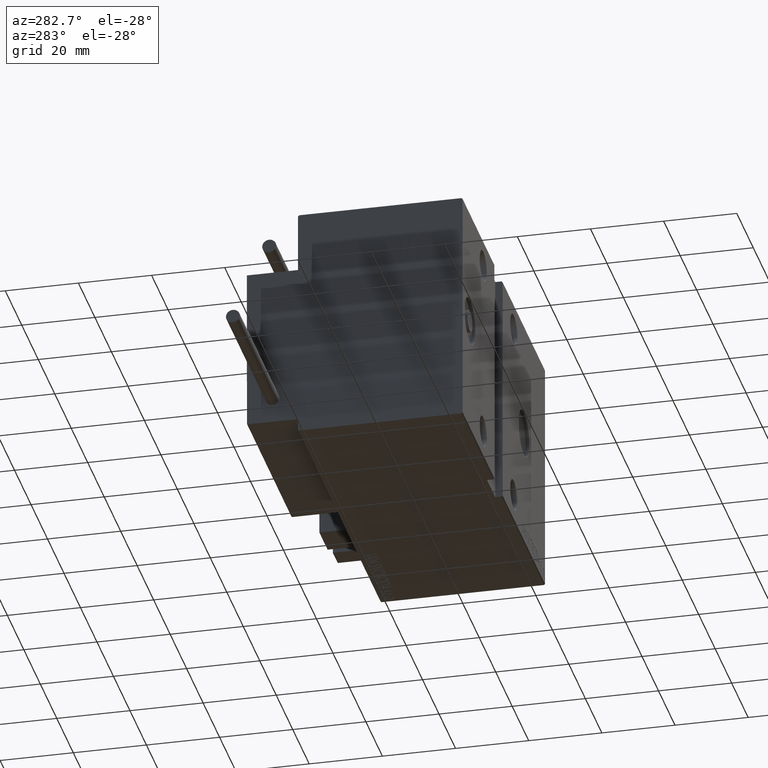
[diagram: clean part render]
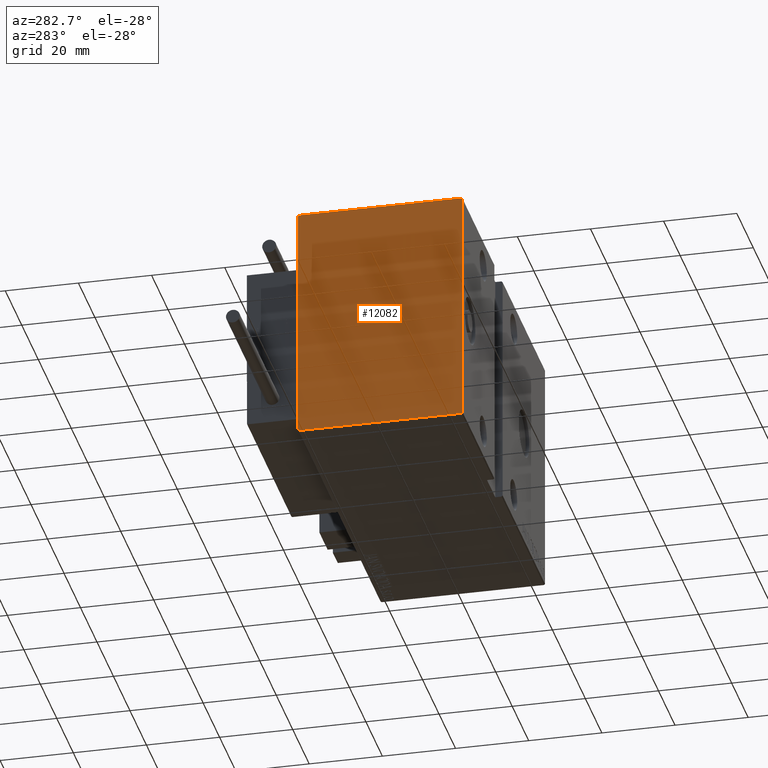
[diagram: same view with one face highlighted and labeled with its STEP entity id]
A machine part, auxiliary view. The second image highlights one B-rep face of the part: STEP entity #12082.
In plain terms, the highlighted planar face has unit normal (-1, 0, 0).
Its self-contained STEP definition (entity closure, byte-faithful):
#509 = CARTESIAN_POINT ( 'NONE',  ( 100.0000000000000000, 22.50000000000000355, -32.50000000000000000 ) ) ;
#532 = VERTEX_POINT ( 'NONE', #46810 ) ;
#825 = LINE ( 'NONE', #12162, #9351 ) ;
#1069 = DIRECTION ( 'NONE',  ( -0.000000000000000000, 0.7071067811865474617, 0.7071067811865474617 ) ) ;
#2451 = EDGE_LOOP ( 'NONE', ( #13887, #25581, #43269, #15101, #5081, #41051, #4586, #2512 ) ) ;
#2512 = ORIENTED_EDGE ( 'NONE', *, *, #4508, .T. ) ;
#2897 = EDGE_CURVE ( 'NONE', #8518, #4963, #7031, .T. ) ;
#3464 = EDGE_CURVE ( 'NONE', #16603, #8518, #23965, .T. ) ;
#4508 = EDGE_CURVE ( 'NONE', #532, #35576, #47154, .T. ) ;
#4586 = ORIENTED_EDGE ( 'NONE', *, *, #48230, .T. ) ;
#4963 = VERTEX_POINT ( 'NONE', #38083 ) ;
#5081 = ORIENTED_EDGE ( 'NONE', *, *, #2897, .T. ) ;
#5551 = CARTESIAN_POINT ( 'NONE',  ( 100.0000000000000000, 22.50000000000000355, -32.19999999999998153 ) ) ;
#7031 = LINE ( 'NONE', #22414, #40314 ) ;
#7582 = LINE ( 'NONE', #509, #19173 ) ;
#8518 = VERTEX_POINT ( 'NONE', #19443 ) ;
#8710 = VERTEX_POINT ( 'NONE', #30660 ) ;
#9068 = FACE_OUTER_BOUND ( 'NONE', #2451, .T. ) ;
#9351 = VECTOR ( 'NONE', #1069, 1000.000000000000114 ) ;
#9763 = DIRECTION ( 'NONE',  ( -0.000000000000000000, 0.7071067811865474617, -0.7071067811865474617 ) ) ;
#11992 = VERTEX_POINT ( 'NONE', #5551 ) ;
#12061 = VECTOR ( 'NONE', #35431, 1000.000000000000114 ) ;
#12082 = ADVANCED_FACE ( 'NONE', ( #9068 ), #24447, .T. ) ;
#12103 = VECTOR ( 'NONE', #43298, 1000.000000000000000 ) ;
#12162 = CARTESIAN_POINT ( 'NONE',  ( 100.0000000000000000, 27.34999999999999076, -27.34999999999999076 ) ) ;
#12508 = CARTESIAN_POINT ( 'NONE',  ( 100.0000000000000000, -22.49999999999999645, 32.50000000000000000 ) ) ;
#13887 = ORIENTED_EDGE ( 'NONE', *, *, #48901, .T. ) ;
#15101 = ORIENTED_EDGE ( 'NONE', *, *, #3464, .T. ) ;
#15256 = LINE ( 'NONE', #42248, #12061 ) ;
#16462 = EDGE_CURVE ( 'NONE', #11992, #16603, #7582, .T. ) ;
#16551 = LINE ( 'NONE', #12508, #12103 ) ;
#16603 = VERTEX_POINT ( 'NONE', #40365 ) ;
#18373 = DIRECTION ( 'NONE',  ( 1.000000000000000000, 0.000000000000000000, 0.000000000000000000 ) ) ;
#19173 = VECTOR ( 'NONE', #42636, 1000.000000000000000 ) ;
#19378 = VECTOR ( 'NONE', #9763, 1000.000000000000114 ) ;
#19443 = CARTESIAN_POINT ( 'NONE',  ( 100.0000000000000000, 22.19999999999997442, 32.50000000000000711 ) ) ;
#20191 = CARTESIAN_POINT ( 'NONE',  ( 100.0000000000000000, 27.35000000000025011, 27.34999999999961418 ) ) ;
#22414 = CARTESIAN_POINT ( 'NONE',  ( 100.0000000000000000, 22.49999999999999645, 32.50000000000000711 ) ) ;
#23432 = LINE ( 'NONE', #42865, #25034 ) ;
#23965 = LINE ( 'NONE', #20191, #37860 ) ;
#24447 = PLANE ( 'NONE',  #24786 ) ;
#24786 = AXIS2_PLACEMENT_3D ( 'NONE', #47654, #18373, #33752 ) ;
#25034 = VECTOR ( 'NONE', #26711, 1000.000000000000000 ) ;
#25581 = ORIENTED_EDGE ( 'NONE', *, *, #34598, .T. ) ;
#26711 = DIRECTION ( 'NONE',  ( 0.000000000000000000, 1.000000000000000000, 0.000000000000000000 ) ) ;
#30660 = CARTESIAN_POINT ( 'NONE',  ( 100.0000000000000000, -22.49999999999999645, 32.19999999999998153 ) ) ;
#32901 = VERTEX_POINT ( 'NONE', #35204 ) ;
#33752 = DIRECTION ( 'NONE',  ( 0.000000000000000000, 0.000000000000000000, -1.000000000000000000 ) ) ;
#34598 = EDGE_CURVE ( 'NONE', #32901, #11992, #825, .T. ) ;
#35204 = CARTESIAN_POINT ( 'NONE',  ( 100.0000000000000000, 22.19999999999996732, -32.50000000000000000 ) ) ;
#35431 = DIRECTION ( 'NONE',  ( 0.000000000000000000, -0.7071067811865474617, -0.7071067811865474617 ) ) ;
#35570 = DIRECTION ( 'NONE',  ( -0.000000000000000000, -0.7071067811865392461, 0.7071067811865556774 ) ) ;
#35576 = VERTEX_POINT ( 'NONE', #41168 ) ;
#37860 = VECTOR ( 'NONE', #35570, 1000.000000000000114 ) ;
#38083 = CARTESIAN_POINT ( 'NONE',  ( 100.0000000000000000, -22.19999999999996021, 32.50000000000000000 ) ) ;
#40291 = CARTESIAN_POINT ( 'NONE',  ( 100.0000000000000000, -27.34999999999998721, -27.34999999999998721 ) ) ;
#40314 = VECTOR ( 'NONE', #45613, 1000.000000000000000 ) ;
#40365 = CARTESIAN_POINT ( 'NONE',  ( 100.0000000000000000, 22.49999999999999645, 32.19999999999998153 ) ) ;
#41051 = ORIENTED_EDGE ( 'NONE', *, *, #46295, .T. ) ;
#41168 = CARTESIAN_POINT ( 'NONE',  ( 100.0000000000000000, -22.19999999999997442, -32.50000000000000000 ) ) ;
#42248 = CARTESIAN_POINT ( 'NONE',  ( 100.0000000000000000, -27.34999999999998721, 27.34999999999998721 ) ) ;
#42636 = DIRECTION ( 'NONE',  ( 0.000000000000000000, -1.067522139062650425E-16, 1.000000000000000000 ) ) ;
#42865 = CARTESIAN_POINT ( 'NONE',  ( 100.0000000000000000, -22.49999999999999645, -32.50000000000000000 ) ) ;
#43269 = ORIENTED_EDGE ( 'NONE', *, *, #16462, .T. ) ;
#43298 = DIRECTION ( 'NONE',  ( 0.000000000000000000, 0.000000000000000000, -1.000000000000000000 ) ) ;
#45613 = DIRECTION ( 'NONE',  ( 0.000000000000000000, -1.000000000000000000, -1.541976423090495633E-16 ) ) ;
#46295 = EDGE_CURVE ( 'NONE', #4963, #8710, #15256, .T. ) ;
#46810 = CARTESIAN_POINT ( 'NONE',  ( 100.0000000000000000, -22.49999999999999645, -32.19999999999998153 ) ) ;
#47154 = LINE ( 'NONE', #40291, #19378 ) ;
#47654 = CARTESIAN_POINT ( 'NONE',  ( 100.0000000000000000, 0.000000000000000000, 0.000000000000000000 ) ) ;
#48230 = EDGE_CURVE ( 'NONE', #8710, #532, #16551, .T. ) ;
#48901 = EDGE_CURVE ( 'NONE', #35576, #32901, #23432, .T. ) ;